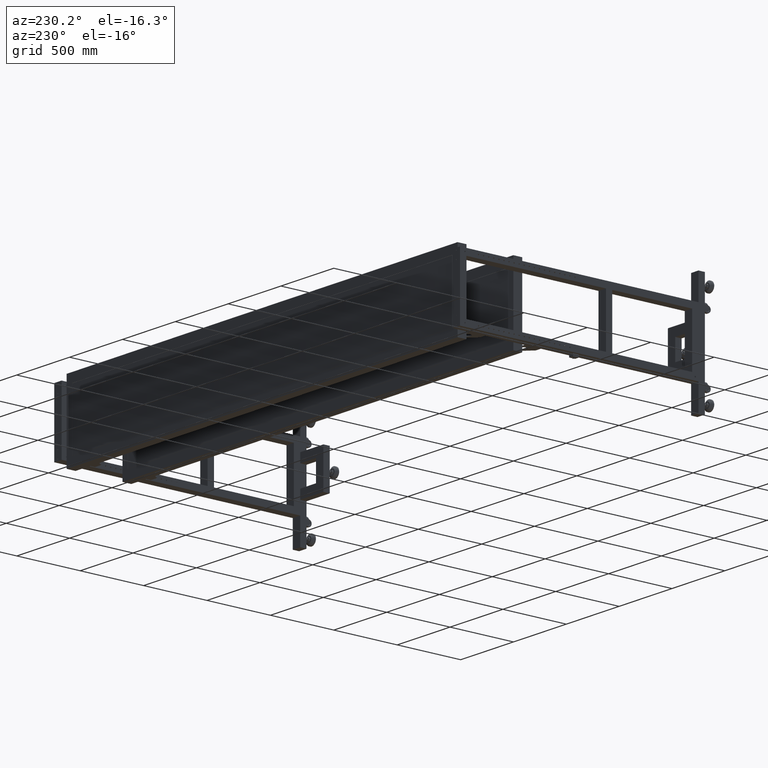
[diagram: clean part render]
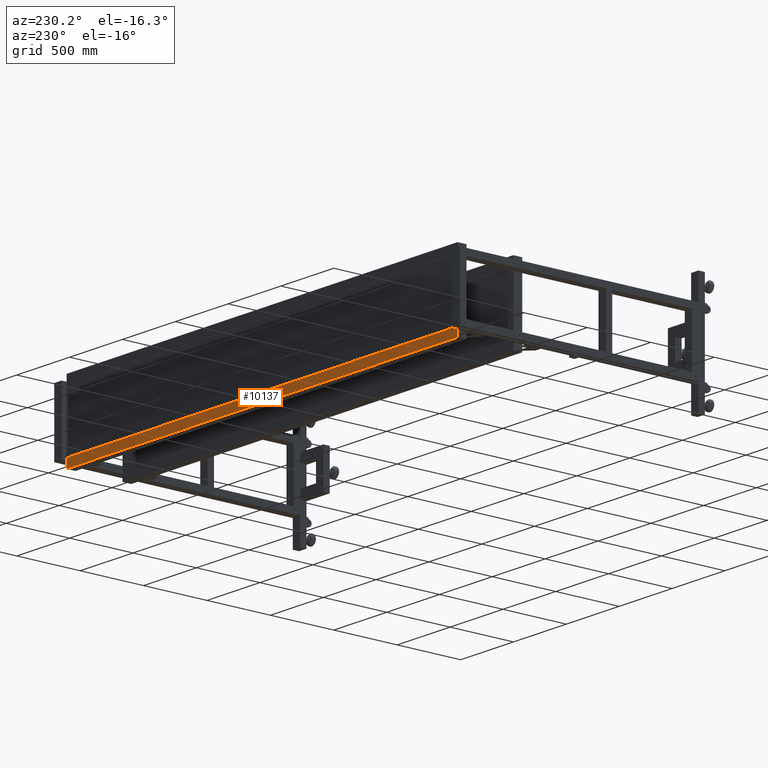
[diagram: same view with one face highlighted and labeled with its STEP entity id]
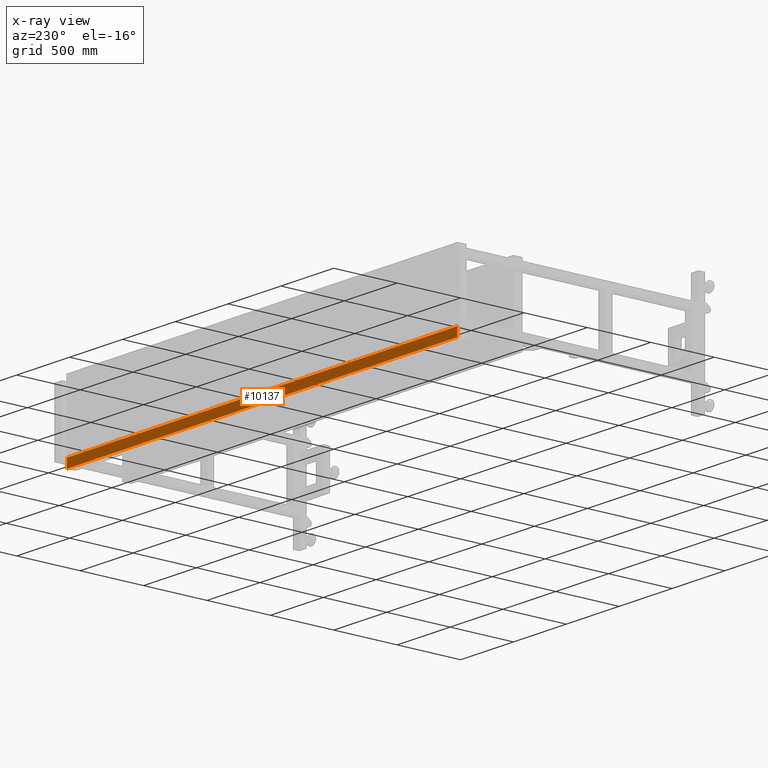
[diagram: x-ray of the same camera — body ghosted, the highlighted face saturated]
A machine part, auxiliary view. The second image highlights one B-rep face of the part: STEP entity #10137.
The next image is the same camera in x-ray: the body ghosted, the highlighted face saturated — about 0% of this face is hidden behind the body in this view.
In plain terms, the highlighted planar face has unit normal (0, -1, -0).
Its self-contained STEP definition (entity closure, byte-faithful):
#224 = ORIENTED_EDGE ( 'NONE', *, *, #17033, .T. ) ;
#2546 = VECTOR ( 'NONE', #11574, 1000.000000000000000 ) ;
#3312 = AXIS2_PLACEMENT_3D ( 'NONE', #41039, #15705, #9538 ) ;
#3386 = VECTOR ( 'NONE', #60736, 1000.000000000000000 ) ;
#5091 = EDGE_CURVE ( 'NONE', #9145, #63346, #66982, .T. ) ;
#9145 = VERTEX_POINT ( 'NONE', #43732 ) ;
#9538 = DIRECTION ( 'NONE',  ( -1.000000000000000000, -4.543257172554223644E-16, 0.000000000000000000 ) ) ;
#10137 = ADVANCED_FACE ( 'NONE', ( #21044 ), #16092, .F. ) ;
#10817 = CARTESIAN_POINT ( 'NONE',  ( 2429.827512562815627, 996.9410804020144496, -299.9999999999988631 ) ) ;
#11574 = DIRECTION ( 'NONE',  ( 0.000000000000000000, 4.000000000000000311E-15, -1.000000000000000000 ) ) ;
#13367 = VERTEX_POINT ( 'NONE', #54088 ) ;
#15705 = DIRECTION ( 'NONE',  ( 4.543257172554223644E-16, -1.000000000000000000, -4.000000000000000311E-15 ) ) ;
#16092 = PLANE ( 'NONE',  #3312 ) ;
#16978 = LINE ( 'NONE', #10817, #3386 ) ;
#17033 = EDGE_CURVE ( 'NONE', #9145, #29956, #16978, .T. ) ;
#17324 = EDGE_CURVE ( 'NONE', #29956, #13367, #20206, .T. ) ;
#18821 = ORIENTED_EDGE ( 'NONE', *, *, #17324, .T. ) ;
#20206 = LINE ( 'NONE', #53324, #79245 ) ;
#21044 = FACE_OUTER_BOUND ( 'NONE', #65899, .T. ) ;
#24469 = ORIENTED_EDGE ( 'NONE', *, *, #5091, .F. ) ;
#25935 = ORIENTED_EDGE ( 'NONE', *, *, #65144, .F. ) ;
#29956 = VERTEX_POINT ( 'NONE', #67150 ) ;
#36310 = CARTESIAN_POINT ( 'NONE',  ( -1266.172487437185964, 996.9410804020137675, -229.9999999999988631 ) ) ;
#37197 = VECTOR ( 'NONE', #61259, 1000.000000000000000 ) ;
#41039 = CARTESIAN_POINT ( 'NONE',  ( 1929.827512562814263, 996.9410804020151318, -299.9999999999988631 ) ) ;
#43732 = CARTESIAN_POINT ( 'NONE',  ( 2429.827512562815627, 996.9410804020142223, -229.9999999999988631 ) ) ;
#48978 = CARTESIAN_POINT ( 'NONE',  ( 1929.827512562814263, 996.9410804020149044, -229.9999999999988631 ) ) ;
#53324 = CARTESIAN_POINT ( 'NONE',  ( 1929.827512562814263, 996.9410804020151318, -299.9999999999988631 ) ) ;
#54088 = CARTESIAN_POINT ( 'NONE',  ( -1266.172487437185964, 996.9410804020139949, -299.9999999999988631 ) ) ;
#57950 = LINE ( 'NONE', #60296, #2546 ) ;
#60296 = CARTESIAN_POINT ( 'NONE',  ( -1266.172487437185964, 996.9410804020139949, -299.9999999999988631 ) ) ;
#60736 = DIRECTION ( 'NONE',  ( -8.867824108943578832E-31, 4.000000000000000311E-15, -1.000000000000000000 ) ) ;
#61259 = DIRECTION ( 'NONE',  ( -1.000000000000000000, -4.543257172554223644E-16, 0.000000000000000000 ) ) ;
#63346 = VERTEX_POINT ( 'NONE', #36310 ) ;
#65144 = EDGE_CURVE ( 'NONE', #63346, #13367, #57950, .T. ) ;
#65899 = EDGE_LOOP ( 'NONE', ( #24469, #224, #18821, #25935 ) ) ;
#66982 = LINE ( 'NONE', #48978, #37197 ) ;
#67150 = CARTESIAN_POINT ( 'NONE',  ( 2429.827512562815627, 996.9410804020144496, -299.9999999999988631 ) ) ;
#71322 = DIRECTION ( 'NONE',  ( -1.000000000000000000, -4.543257172554223644E-16, 0.000000000000000000 ) ) ;
#79245 = VECTOR ( 'NONE', #71322, 1000.000000000000000 ) ;